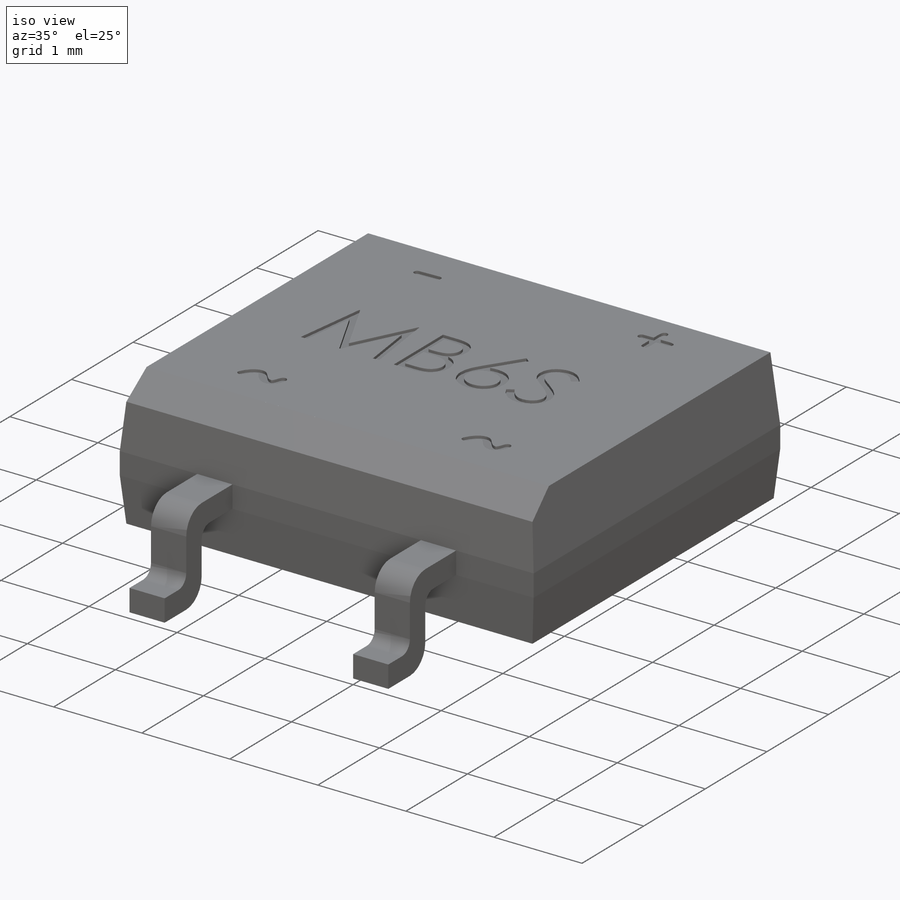
[diagram: iso view]
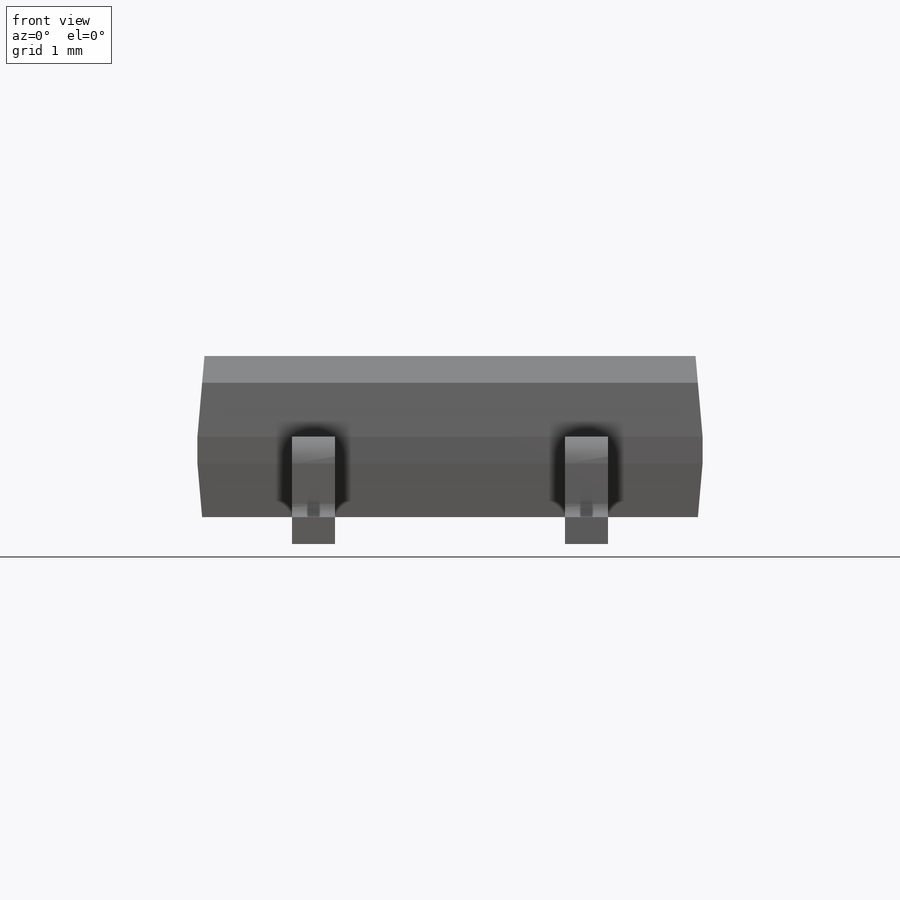
[diagram: front view]
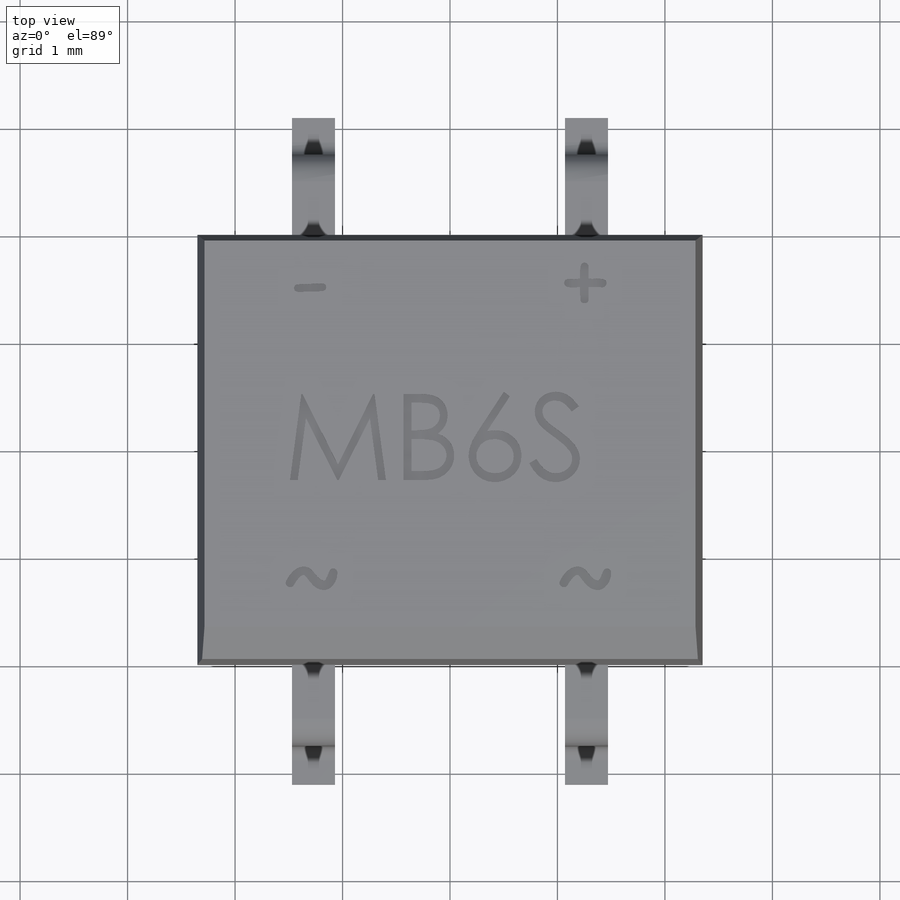
[diagram: top view]
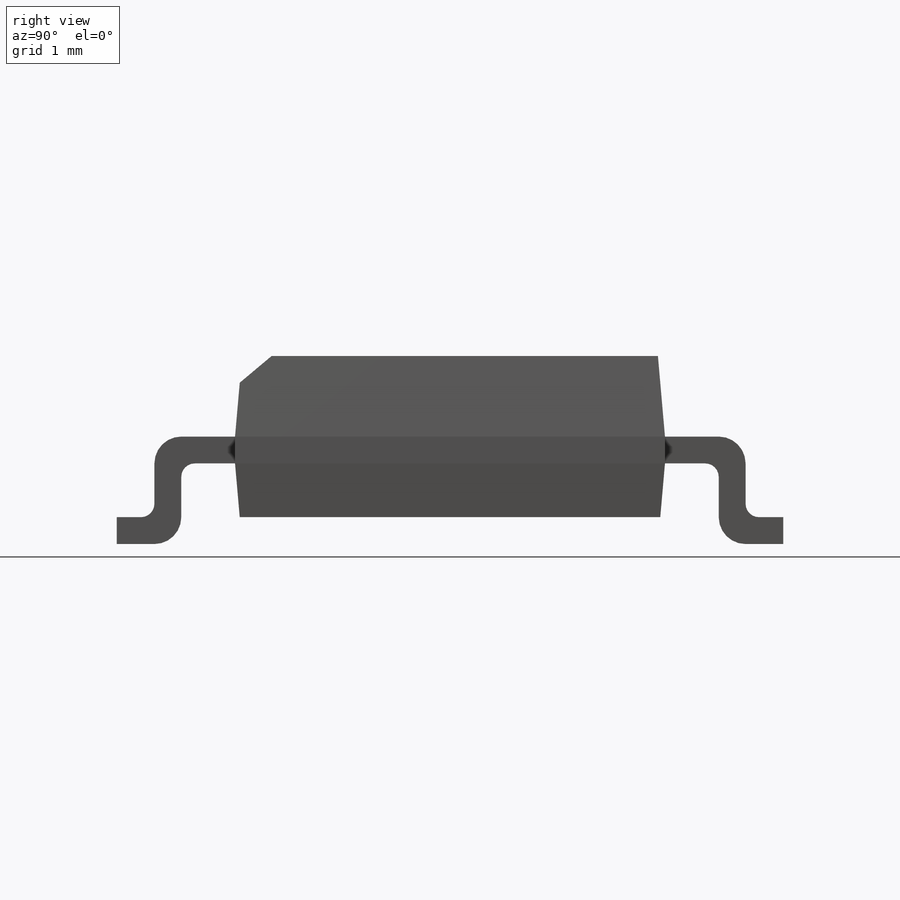
[diagram: right view]
SOLIDWORKS PART (.sldprt)
format: sldprt  version: not decoded by parser v0  size: 887,296 bytes
history: native  units: mm
features: plane x5, sketch x5, extrude x3, fillet x2, material x1, chamfer x1, mirror x1, pattern_linear x1, cut_extrude x1 (+12 scaffold rows collapsed)
feature tree (32):
  scaffold x12  (default folders/planes/origin — collapsed)
  material  "Материал <не указан>"
  plane  "Side"
  plane  "Plane1"  Offset=0.25mm
  sketch  "Sketch2"  dims[D1=4.0mm D2=4.7mm]
  extrude  "Package"  Depth=1.5mm
  plane  "Plane2"
  plane  "Plane3"  Offset=0.25mm
  extrude  "Draft2"  [1 undecoded]
  chamfer  "Chamfer1"  Distance=0.25mm Angle=45deg
  plane  "Plane4"  Offset=1.08mm
  sketch  "Sketch3"  dims[D1=0.25mm D2=0.25mm D3=0.6mm D4=3.1mm]
  extrude  "Leads"  Depth=0.4mm
  fillet  "Fillet1"  Radius=0.25mm
  fillet  "Fillet2"  Radius=0.125mm
  mirror  "Mirror1"
  pattern_linear  "LPattern1"  Count1=2 Count2=1 Spacing1=2.54mm Spacing2=10mm
  sketch  "Sketch4"  dims[D1=0.45mm D2=1.2mm]
  cut_extrude  "Marker"  Depth=0.03mm
  sketch  "Marker2"  dims[D1=0.03mm]
  sketch  "Эскиз3"  dims[D1=0.03mm]
decode coverage: 12 of 14 modeling features carry decoded parameters
note: 1 parameter value undecoded
note: suppression state not decoded; provenance and decode notes live in map.json
